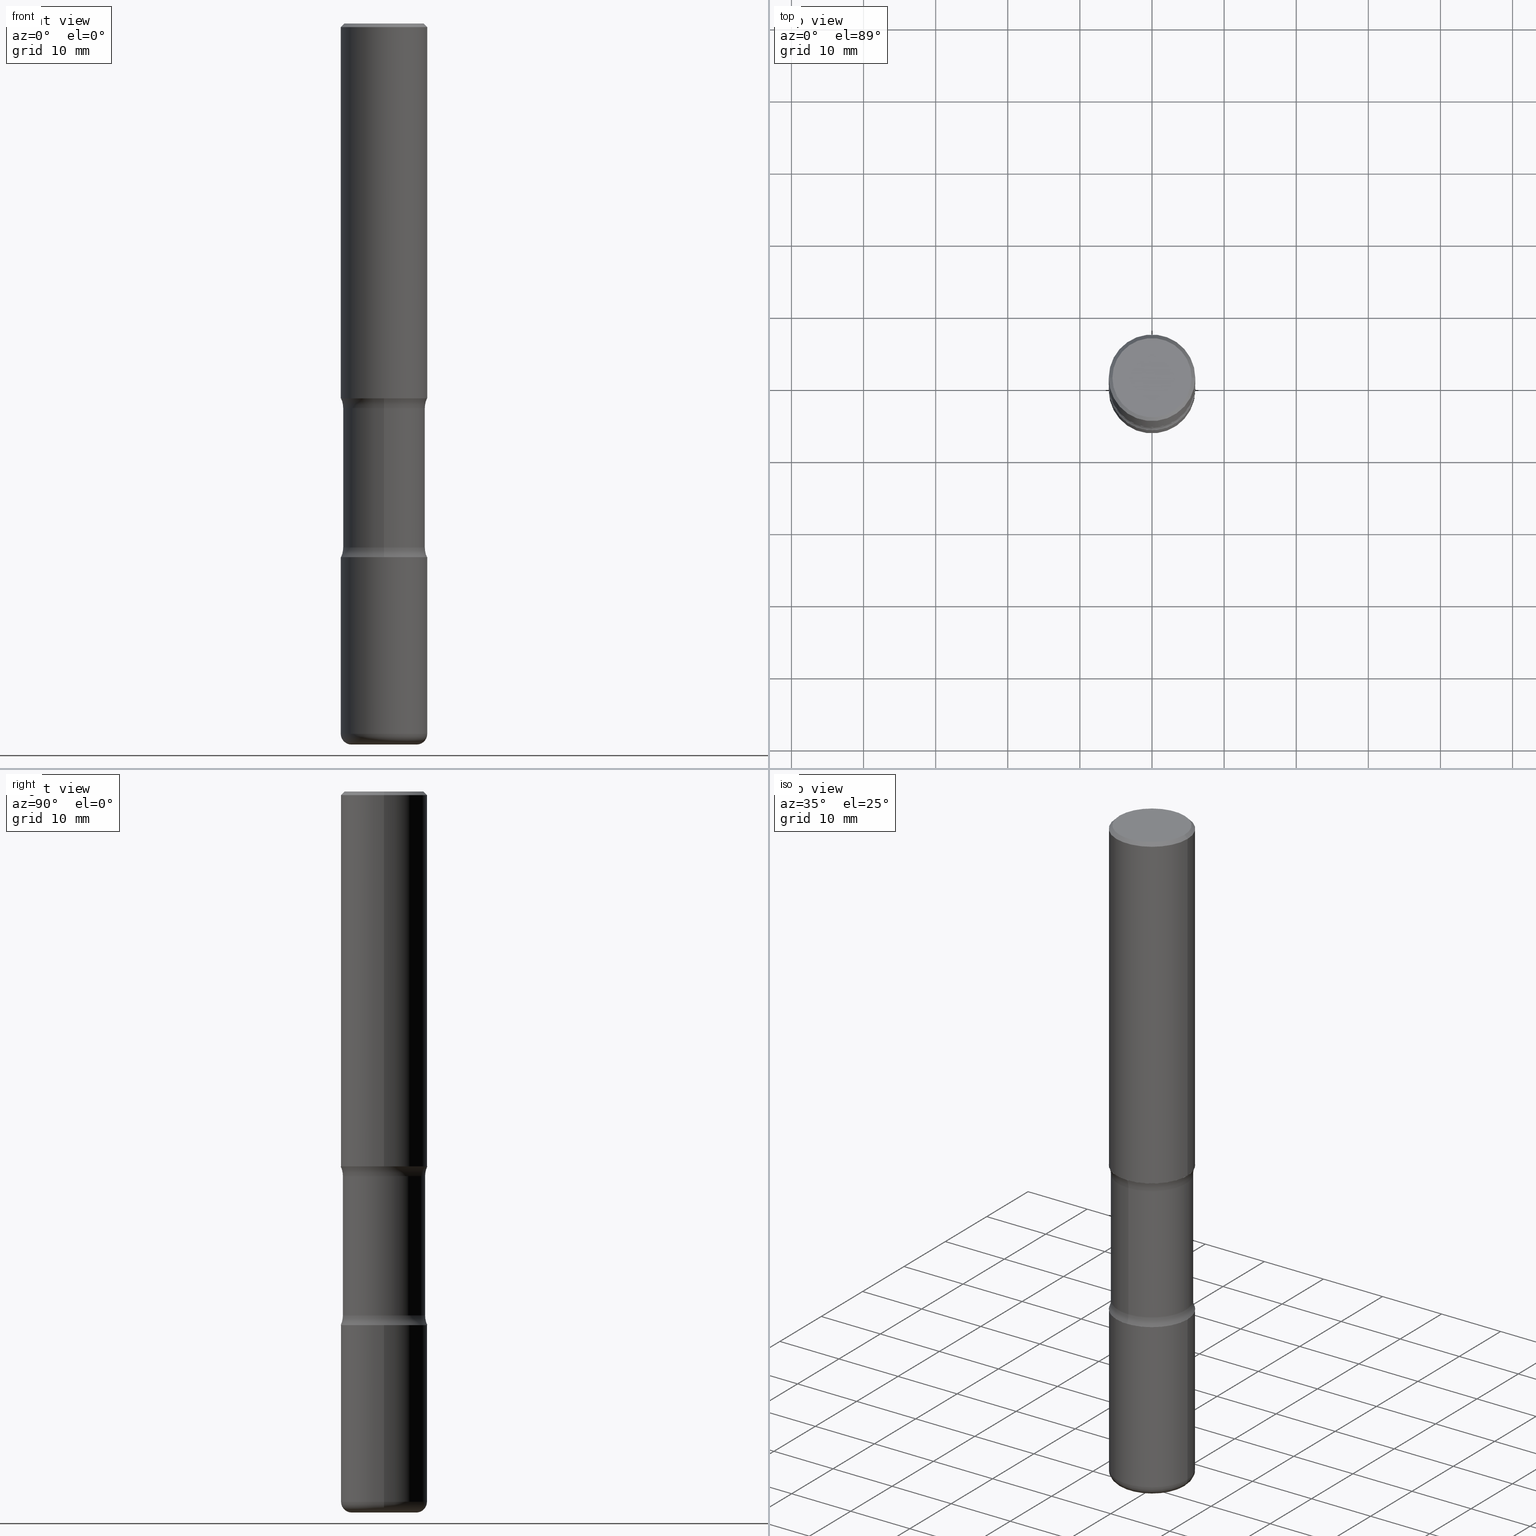
[diagram: canonical four-view strip — front | top / right | iso, engineering-drawing reading convention]
A machine part, canonical four-view strip (front | top / right | iso — engineering-drawing reading convention). The complete STEP part file that produces these views, byte-faithful:
ISO-10303-21;
HEADER;
FILE_DESCRIPTION (( 'STEP AP203' ),
    '1' );
FILE_NAME ('47701.STEP',
    '2024-03-02T07:27:56',
    ( '' ),
    ( '' ),
    'SwSTEP 2.0',
    'SolidWorks 2023',
    '' );
FILE_SCHEMA (( 'CONFIG_CONTROL_DESIGN' ));
ENDSEC;

DATA;
#1 = ORIENTED_EDGE ( 'NONE', *, *, #251, .F. ) ;
#2 = CARTESIAN_POINT ( 'NONE',  ( 7.124628819939777829E-29, -1.017208173258562247E-14, -2.913400000000000212 ) ) ;
#3 = CARTESIAN_POINT ( 'NONE',  ( 5.070539682259229331E-29, -7.426630284172150130E-15, -2.100216601173595432 ) ) ;
#4 = AXIS2_PLACEMENT_3D ( 'NONE', #394, #343, #308 ) ;
#5 = AXIS2_PLACEMENT_3D ( 'NONE', #281, #275, #165 ) ;
#6 = CARTESIAN_POINT ( 'NONE',  ( 9.483283483505337853E-29, -1.353961548389983144E-14, -3.877899999999999014 ) ) ;
#7 = CYLINDRICAL_SURFACE ( 'NONE', #88, 0.2361999999999999933 ) ;
#8 = EDGE_CURVE ( 'NONE', #21, #9, #61, .T. ) ;
#9 = VERTEX_POINT ( 'NONE', #107 ) ;
#10 = FACE_OUTER_BOUND ( 'NONE', #278, .T. ) ;
#11 = CIRCLE ( 'NONE', #232, 0.2362000000000001321 ) ;
#12 = DIRECTION ( 'NONE',  ( 2.525985086076564115E-29, -3.376177443336566513E-15, -1.000000000000000000 ) ) ;
#13 = ADVANCED_FACE ( 'NONE', ( #483 ), #99, .F. ) ;
#14 = ORIENTED_EDGE ( 'NONE', *, *, #8, .T. ) ;
#15 =( NAMED_UNIT ( * ) SI_UNIT ( $, .STERADIAN. ) SOLID_ANGLE_UNIT ( ) );
#16 = ADVANCED_BREP_SHAPE_REPRESENTATION ( '47701', ( #464, #480, #114, #405 ), #122 ) ;
#17 = ORIENTED_EDGE ( 'NONE', *, *, #32, .F. ) ;
#18 = DIRECTION ( 'NONE',  ( 2.525985086076564115E-29, -3.376177443336566513E-15, -1.000000000000000000 ) ) ;
#19 = DIRECTION ( 'NONE',  ( -2.445468806185136877E-29, 3.491481338843145188E-15, 1.000000000000000000 ) ) ;
#20 = TOROIDAL_SURFACE ( 'NONE', #453, 0.1771000000000002295, 0.05909999999999966669 ) ;
#21 = VERTEX_POINT ( 'NONE', #436 ) ;
#22 = CARTESIAN_POINT ( 'NONE',  ( 5.006363740022212241E-29, -7.147760596879688202E-15, -2.047200000000000131 ) ) ;
#23 = APPROVAL_PERSON_ORGANIZATION ( #247, #474, #423 ) ;
#24 = PLANE ( 'NONE',  #192 ) ;
#25 = EDGE_CURVE ( 'NONE', #315, #260, #106, .T. ) ;
#26 = CALENDAR_DATE ( 2024, 2, 3 ) ;
#27 = FACE_OUTER_BOUND ( 'NONE', #272, .T. ) ;
#28 = CIRCLE ( 'NONE', #177, 0.2243999999999999606 ) ;
#29 = DATE_TIME_ROLE ( 'creation_date' ) ;
#30 = EDGE_CURVE ( 'NONE', #282, #110, #284, .T. ) ;
#31 = DIRECTION ( 'NONE',  ( -2.445468806185136597E-29, 3.491481338843145583E-15, 1.000000000000000000 ) ) ;
#32 = EDGE_CURVE ( 'NONE', #323, #358, #488, .T. ) ;
#33 = PERSON_AND_ORGANIZATION ( #145, #179 ) ;
#34 = DIRECTION ( 'NONE',  ( 2.525985086076564115E-29, -3.376177443336566513E-15, -1.000000000000000000 ) ) ;
#35 = DIRECTION ( 'NONE',  ( -6.982962677686264344E-15, -1.000000000000000000, 0.000000000000000000 ) ) ;
#36 = SHAPE_DEFINITION_REPRESENTATION ( #46, #16 ) ;
#37 = AXIS2_PLACEMENT_3D ( 'NONE', #478, #141, #305 ) ;
#38 = APPLICATION_CONTEXT ( 'configuration controlled 3d designs of mechanical parts and assemblies' ) ;
#39 = CC_DESIGN_APPROVAL ( #288, ( #376 ) ) ;
#40 = EDGE_CURVE ( 'NONE', #238, #203, #289, .T. ) ;
#41 = DIRECTION ( 'NONE',  ( 1.000000000000000000, -6.982962677686267499E-15, 0.000000000000000000 ) ) ;
#42 = COORDINATED_UNIVERSAL_TIME_OFFSET ( 5, 0, .BEHIND. ) ;
#43 = DIRECTION ( 'NONE',  ( 6.860497997771529985E-15, 1.000000000000000000, 0.000000000000000000 ) ) ;
#44 = EDGE_LOOP ( 'NONE', ( #262, #14, #523, #67 ) ) ;
#45 = DIRECTION ( 'NONE',  ( -2.525985086076564115E-29, 3.376177443336566513E-15, 1.000000000000000000 ) ) ;
#46 = PRODUCT_DEFINITION_SHAPE ( 'NONE', 'NONE',  #376 ) ;
#47 = DIRECTION ( 'NONE',  ( 1.000000000000000000, -6.982962677686269077E-15, 0.000000000000000000 ) ) ;
#48 = VECTOR ( 'NONE', #255, 39.37007874015748143 ) ;
#49 = FACE_OUTER_BOUND ( 'NONE', #406, .T. ) ;
#50 = CIRCLE ( 'NONE', #82, 0.2362000000000001321 ) ;
#51 = DIRECTION ( 'NONE',  ( -2.445468806185136597E-29, 3.491481338843145583E-15, 1.000000000000000000 ) ) ;
#52 = EDGE_CURVE ( 'NONE', #323, #194, #327, .T. ) ;
#53 = DIRECTION ( 'NONE',  ( 2.438088387897960049E-29, -3.491481338843145188E-15, -1.000000000000000000 ) ) ;
#54 = ORIENTED_EDGE ( 'NONE', *, *, #551, .F. ) ;
#55 = CARTESIAN_POINT ( 'NONE',  ( 9.710227154047748282E-29, -1.362793696358492956E-14, -3.937000000000000277 ) ) ;
#56 = ORIENTED_EDGE ( 'NONE', *, *, #502, .F. ) ;
#57 = DIRECTION ( 'NONE',  ( 1.000000000000000000, -6.982962677686266711E-15, 4.876176775795936353E-29 ) ) ;
#58 = APPROVAL_PERSON_ORGANIZATION ( #33, #288, #459 ) ;
#59 = APPROVAL ( #328, 'UNSPECIFIED' ) ;
#60 = VECTOR ( 'NONE', #499, 39.37007874015748143 ) ;
#61 = LINE ( 'NONE', #444, #452 ) ;
#62 = AXIS2_PLACEMENT_3D ( 'NONE', #475, #121, #163 ) ;
#63 = CIRCLE ( 'NONE', #5, 0.05909999999999968751 ) ;
#64 = VERTEX_POINT ( 'NONE', #457 ) ;
#65 =( NAMED_UNIT ( * ) PLANE_ANGLE_UNIT ( ) SI_UNIT ( $, .RADIAN. ) );
#66 = DIRECTION ( 'NONE',  ( 2.438088387897960049E-29, -3.491481338843145188E-15, -1.000000000000000000 ) ) ;
#67 = ORIENTED_EDGE ( 'NONE', *, *, #150, .F. ) ;
#68 = CARTESIAN_POINT ( 'NONE',  ( 0.2362000000000001321, -8.797136381349186305E-15, -2.047200000000000131 ) ) ;
#69 = EDGE_LOOP ( 'NONE', ( #1, #242, #187, #500 ) ) ;
#70 = CARTESIAN_POINT ( 'NONE',  ( 5.006363740022212241E-29, -7.147760596879688202E-15, -2.047200000000000131 ) ) ;
#71 = EDGE_LOOP ( 'NONE', ( #234, #387, #196, #17 ) ) ;
#72 = VECTOR ( 'NONE', #439, 39.37007874015748143 ) ;
#73 = CIRCLE ( 'NONE', #293, 0.2362000000000002431 ) ;
#74 = ORIENTED_EDGE ( 'NONE', *, *, #368, .T. ) ;
#75 = DIRECTION ( 'NONE',  ( 2.525985086076564115E-29, -3.376177443336566513E-15, -1.000000000000000000 ) ) ;
#76 = EDGE_CURVE ( 'NONE', #110, #238, #462, .T. ) ;
#77 = FACE_OUTER_BOUND ( 'NONE', #44, .T. ) ;
#78 = APPROVAL_DATE_TIME ( #134, #59 ) ;
#79 = EDGE_CURVE ( 'NONE', #201, #9, #557, .T. ) ;
#80 = CLOSED_SHELL ( 'NONE', ( #447, #161, #355, #300, #237, #325 ) ) ;
#81 = CARTESIAN_POINT ( 'NONE',  ( 5.088323202950023588E-29, -7.401163270367792936E-15, -2.100216601173595432 ) ) ;
#82 = AXIS2_PLACEMENT_3D ( 'NONE', #22, #283, #446 ) ;
#83 = DIRECTION ( 'NONE',  ( -2.445468806185136877E-29, 3.491481338843145188E-15, 1.000000000000000000 ) ) ;
#84 = PERSON_AND_ORGANIZATION_ROLE ( 'design_supplier' ) ;
#85 = DIRECTION ( 'NONE',  ( 1.000000000000000000, -6.982962677686265922E-15, 4.876176775795935793E-29 ) ) ;
#86 = APPROVAL_STATUS ( 'not_yet_approved' ) ;
#87 = CARTESIAN_POINT ( 'NONE',  ( -0.2161999999999998368, 1.544631344304201183E-15, 4.268512490089730842E-18 ) ) ;
#88 = AXIS2_PLACEMENT_3D ( 'NONE', #190, #432, #57 ) ;
#89 = PRODUCT_DEFINITION_FORMATION_WITH_SPECIFIED_SOURCE ( 'ANY', '', #264, .NOT_KNOWN. ) ;
#90 = CARTESIAN_POINT ( 'NONE',  ( 7.124628819939777829E-29, -1.017208173258562247E-14, -2.913400000000000212 ) ) ;
#91 = ORIENTED_EDGE ( 'NONE', *, *, #79, .F. ) ;
#92 = CARTESIAN_POINT ( 'NONE',  ( 6.990709676060807691E-29, -9.993088279580958225E-15, -2.860383398826405354 ) ) ;
#93 = ADVANCED_FACE ( 'NONE', ( #49 ), #381, .T. ) ;
#94 = DIRECTION ( 'NONE',  ( -2.445468806185136597E-29, 3.491481338843145583E-15, 1.000000000000000000 ) ) ;
#95 = TOROIDAL_SURFACE ( 'NONE', #184, 0.1771000000000002295, 0.05909999999999966669 ) ;
#96 = AXIS2_PLACEMENT_3D ( 'NONE', #231, #182, #313 ) ;
#97 = ORIENTED_EDGE ( 'NONE', *, *, #270, .T. ) ;
#98 = DIRECTION ( 'NONE',  ( 1.000000000000000000, -6.982962677686266711E-15, 0.000000000000000000 ) ) ;
#99 = PLANE ( 'NONE',  #382 ) ;
#100 = ORIENTED_EDGE ( 'NONE', *, *, #512, .T. ) ;
#101 = DIRECTION ( 'NONE',  ( 2.525985086076564115E-29, -3.376177443336566513E-15, -1.000000000000000000 ) ) ;
#102 = EDGE_CURVE ( 'NONE', #323, #532, #222, .T. ) ;
#103 = CARTESIAN_POINT ( 'NONE',  ( 1.566976824872894642E-15, 0.2243999999999863049, -3.937000000000000721 ) ) ;
#104 = ORIENTED_EDGE ( 'NONE', *, *, #76, .T. ) ;
#105 = DIRECTION ( 'NONE',  ( 2.525985086076564115E-29, -3.376177443336566513E-15, -1.000000000000000000 ) ) ;
#106 = CIRCLE ( 'NONE', #545, 0.2362000000000001321 ) ;
#107 = CARTESIAN_POINT ( 'NONE',  ( -0.2361999999999998823, 1.579546157692632438E-15, -0.02000000000000006981 ) ) ;
#108 = CIRCLE ( 'NONE', #129, 0.2362000000000002153 ) ;
#109 = CC_DESIGN_APPROVAL ( #474, ( #422 ) ) ;
#110 = VERTEX_POINT ( 'NONE', #515 ) ;
#111 = CARTESIAN_POINT ( 'NONE',  ( 4.936620538380257512E-29, -7.247636831167487464E-15, -2.047200000000000131 ) ) ;
#112 = ORIENTED_EDGE ( 'NONE', *, *, #32, .T. ) ;
#113 = DIRECTION ( 'NONE',  ( -2.445468806185136597E-29, 3.491481338843145583E-15, 1.000000000000000000 ) ) ;
#114 = MANIFOLD_SOLID_BREP ( 'Body-Move/Copy2[4]', #118 ) ;
#115 = EDGE_CURVE ( 'NONE', #540, #9, #332, .T. ) ;
#116 = ORIENTED_EDGE ( 'NONE', *, *, #558, .T. ) ;
#117 = CARTESIAN_POINT ( 'NONE',  ( -1.620449627073587747E-15, -0.2362000000000074318, -2.047199999999999243 ) ) ;
#118 = CLOSED_SHELL ( 'NONE', ( #386, #494, #419, #259, #536, #403, #199, #211 ) ) ;
#119 = CIRCLE ( 'NONE', #131, 0.2362000000000001321 ) ;
#120 = EDGE_LOOP ( 'NONE', ( #326, #97 ) ) ;
#121 = DIRECTION ( 'NONE',  ( -2.445468806185136597E-29, 3.491481338843145583E-15, 1.000000000000000000 ) ) ;
#122 =( GEOMETRIC_REPRESENTATION_CONTEXT ( 3 ) GLOBAL_UNCERTAINTY_ASSIGNED_CONTEXT ( ( #174 ) ) GLOBAL_UNIT_ASSIGNED_CONTEXT ( ( #322, #65, #15 ) ) REPRESENTATION_CONTEXT ( 'NONE', 'WORKASPACE' ) );
#123 = APPLICATION_PROTOCOL_DEFINITION ( 'international standard', 'config_control_design', 1994, #38 ) ;
#124 = CC_DESIGN_DATE_AND_TIME_ASSIGNMENT ( #369, #253, ( #422 ) ) ;
#125 = APPROVAL_ROLE ( '' ) ;
#126 = CARTESIAN_POINT ( 'NONE',  ( 1.649375784469546815E-15, 0.2361999999999930266, -2.047200000000001019 ) ) ;
#127 = AXIS2_PLACEMENT_3D ( 'NONE', #433, #53, #345 ) ;
#128 = PERSON_AND_ORGANIZATION_ROLE ( 'creator' ) ;
#129 = AXIS2_PLACEMENT_3D ( 'NONE', #198, #501, #455 ) ;
#130 = DIRECTION ( 'NONE',  ( 1.000000000000000000, -6.982962677686266711E-15, 4.876217060660159599E-29 ) ) ;
#131 = AXIS2_PLACEMENT_3D ( 'NONE', #2, #438, #47 ) ;
#132 = FACE_OUTER_BOUND ( 'NONE', #312, .T. ) ;
#133 = CARTESIAN_POINT ( 'NONE',  ( 4.890937612370289799E-31, -6.982962677686315028E-17, -0.02000000000000006981 ) ) ;
#134 = DATE_AND_TIME ( #26, #395 ) ;
#135 = ADVANCED_FACE ( 'NONE', ( #244 ), #95, .T. ) ;
#136 = DIRECTION ( 'NONE',  ( 6.982962677686265922E-15, 1.000000000000000000, -3.376177443336566513E-15 ) ) ;
#137 = ORIENTED_EDGE ( 'NONE', *, *, #228, .F. ) ;
#138 = DIRECTION ( 'NONE',  ( 2.525985086076564115E-29, -3.376177443336566513E-15, -1.000000000000000000 ) ) ;
#139 = AXIS2_PLACEMENT_3D ( 'NONE', #399, #113, #240 ) ;
#140 = ORIENTED_EDGE ( 'NONE', *, *, #502, .T. ) ;
#141 = DIRECTION ( 'NONE',  ( 2.438088387897960049E-29, -3.491481338843145188E-15, -1.000000000000000000 ) ) ;
#142 = EDGE_CURVE ( 'NONE', #9, #540, #241, .T. ) ;
#143 = DIRECTION ( 'NONE',  ( 2.525985086076564115E-29, -3.376177443336566513E-15, -1.000000000000000000 ) ) ;
#144 = DIRECTION ( 'NONE',  ( -2.445468806185136597E-29, 3.491481338843145583E-15, 1.000000000000000000 ) ) ;
#145 = PERSON ( 'UNSPECIFIED', 'UNSPECIFIED', 'UNSPECIFIED', ('UNSPECIFIED'), ('UNSPECIFIED'), ('UNSPECIFIED') ) ;
#146 = ORIENTED_EDGE ( 'NONE', *, *, #270, .F. ) ;
#147 = DIRECTION ( 'NONE',  ( 2.525985086076564115E-29, -3.376177443336566513E-15, -1.000000000000000000 ) ) ;
#148 = AXIS2_PLACEMENT_3D ( 'NONE', #339, #550, #514 ) ;
#149 = DIRECTION ( 'NONE',  ( -2.445468806185136597E-29, 3.491481338843145583E-15, 1.000000000000000000 ) ) ;
#150 = EDGE_CURVE ( 'NONE', #505, #540, #487, .T. ) ;
#151 = EDGE_LOOP ( 'NONE', ( #146, #534, #197, #91 ) ) ;
#152 = CARTESIAN_POINT ( 'NONE',  ( -1.539495750699834052E-15, -0.2244000000000135608, -3.936999999999999389 ) ) ;
#153 = DIRECTION ( 'NONE',  ( -2.445468806185136597E-29, 3.491481338843145583E-15, 1.000000000000000000 ) ) ;
#154 = VERTEX_POINT ( 'NONE', #295 ) ;
#155 = DIRECTION ( 'NONE',  ( 6.982962677686265922E-15, 1.000000000000000000, -2.434802133390609421E-15 ) ) ;
#156 = EDGE_LOOP ( 'NONE', ( #159, #189 ) ) ;
#157 = DIRECTION ( 'NONE',  ( 1.000000000000000000, -6.982962677686269077E-15, 0.000000000000000000 ) ) ;
#158 = AXIS2_PLACEMENT_3D ( 'NONE', #425, #144, #98 ) ;
#159 = ORIENTED_EDGE ( 'NONE', *, *, #292, .T. ) ;
#160 =( LENGTH_UNIT ( ) NAMED_UNIT ( * ) SI_UNIT ( $, .METRE. ) );
#161 = ADVANCED_FACE ( 'NONE', ( #372 ), #525, .T. ) ;
#162 = ORIENTED_EDGE ( 'NONE', *, *, #330, .T. ) ;
#163 = DIRECTION ( 'NONE',  ( 1.000000000000000000, -6.982962677686266711E-15, 4.876217060660159599E-29 ) ) ;
#164 = ORIENTED_EDGE ( 'NONE', *, *, #142, .F. ) ;
#165 = DIRECTION ( 'NONE',  ( -1.000000000000000000, 7.105427357600997914E-15, 0.000000000000000000 ) ) ;
#166 = LOCAL_TIME ( 2, 27, 56.00000000000000000, #250 ) ;
#167 = AXIS2_PLACEMENT_3D ( 'NONE', #81, #418, #331 ) ;
#168 = EDGE_CURVE ( 'NONE', #384, #203, #420, .T. ) ;
#169 = ORIENTED_EDGE ( 'NONE', *, *, #466, .T. ) ;
#170 = CALENDAR_DATE ( 2024, 2, 3 ) ;
#171 = CARTESIAN_POINT ( 'NONE',  ( 6.994978375559792251E-29, -9.986975258939122984E-15, -2.860383398826405354 ) ) ;
#172 = DIRECTION ( 'NONE',  ( -6.982962677686266711E-15, -1.000000000000000000, 3.491481338843145583E-15 ) ) ;
#173 = PERSON_AND_ORGANIZATION ( #145, #179 ) ;
#174 = UNCERTAINTY_MEASURE_WITH_UNIT (LENGTH_MEASURE( 1.000000000000000082E-05 ), #322, 'distance_accuracy_value', 'NONE');
#175 = CARTESIAN_POINT ( 'NONE',  ( 9.710227154047748282E-29, -1.362793696358492956E-14, -3.937000000000000277 ) ) ;
#176 = PERSON_AND_ORGANIZATION_ROLE ( 'classification_officer' ) ;
#177 = AXIS2_PLACEMENT_3D ( 'NONE', #269, #12, #186 ) ;
#178 = CYLINDRICAL_SURFACE ( 'NONE', #148, 0.2362000000000001598 ) ;
#179 = ORGANIZATION ( 'UNSPECIFIED', 'UNSPECIFIED', '' ) ;
#180 = EDGE_CURVE ( 'NONE', #472, #194, #191, .T. ) ;
#181 = ORIENTED_EDGE ( 'NONE', *, *, #349, .T. ) ;
#182 = DIRECTION ( 'NONE',  ( 2.445468806185136597E-29, -3.491481338843145583E-15, -1.000000000000000000 ) ) ;
#183 = CC_DESIGN_DATE_AND_TIME_ASSIGNMENT ( #552, #29, ( #376 ) ) ;
#184 = AXIS2_PLACEMENT_3D ( 'NONE', #460, #149, #530 ) ;
#185 = CIRCLE ( 'NONE', #341, 0.2362000000000001321 ) ;
#186 = DIRECTION ( 'NONE',  ( 6.982962677686265922E-15, 1.000000000000000000, -2.434802133390609421E-15 ) ) ;
#187 = ORIENTED_EDGE ( 'NONE', *, *, #79, .T. ) ;
#188 = DIRECTION ( 'NONE',  ( 1.000000000000000000, -6.982962677686266711E-15, 0.000000000000000000 ) ) ;
#189 = ORIENTED_EDGE ( 'NONE', *, *, #168, .T. ) ;
#190 = CARTESIAN_POINT ( 'NONE',  ( 0.000000000000000000, 0.000000000000000000, 0.000000000000000000 ) ) ;
#191 = CIRCLE ( 'NONE', #214, 0.2362000000000002431 ) ;
#192 = AXIS2_PLACEMENT_3D ( 'NONE', #70, #364, #541 ) ;
#193 = DIRECTION ( 'NONE',  ( 1.000000000000000000, -6.982962677686266711E-15, 0.000000000000000000 ) ) ;
#194 = VERTEX_POINT ( 'NONE', #126 ) ;
#195 = DIRECTION ( 'NONE',  ( 2.525985086076564115E-29, -3.376177443336566513E-15, -1.000000000000000000 ) ) ;
#196 = ORIENTED_EDGE ( 'NONE', *, *, #368, .F. ) ;
#197 = ORIENTED_EDGE ( 'NONE', *, *, #115, .T. ) ;
#198 = CARTESIAN_POINT ( 'NONE',  ( 9.483283483505337853E-29, -1.353961548389983144E-14, -3.877899999999999014 ) ) ;
#199 = ADVANCED_FACE ( 'NONE', ( #370 ), #442, .F. ) ;
#200 = CIRCLE ( 'NONE', #504, 0.2362000000000002153 ) ;
#201 = VERTEX_POINT ( 'NONE', #87 ) ;
#202 = FACE_OUTER_BOUND ( 'NONE', #356, .T. ) ;
#203 = VERTEX_POINT ( 'NONE', #417 ) ;
#204 = CARTESIAN_POINT ( 'NONE',  ( 4.890937612370289799E-31, -6.982962677686315028E-17, -0.02000000000000006981 ) ) ;
#205 = ADVANCED_FACE ( 'NONE', ( #378 ), #178, .T. ) ;
#206 = DIRECTION ( 'NONE',  ( -6.982962677686266711E-15, -1.000000000000000000, 0.000000000000000000 ) ) ;
#207 = CIRCLE ( 'NONE', #62, 0.2161999999999998368 ) ;
#208 = SECURITY_CLASSIFICATION_LEVEL ( 'unclassified' ) ;
#209 = DIRECTION ( 'NONE',  ( -2.445468806185136597E-29, 3.491481338843145583E-15, 1.000000000000000000 ) ) ;
#210 = APPROVAL_DATE_TIME ( #213, #288 ) ;
#211 = ADVANCED_FACE ( 'NONE', ( #215 ), #556, .T. ) ;
#212 = AXIS2_PLACEMENT_3D ( 'NONE', #217, #209, #470 ) ;
#213 = DATE_AND_TIME ( #374, #166 ) ;
#214 = AXIS2_PLACEMENT_3D ( 'NONE', #467, #510, #258 ) ;
#215 = FACE_OUTER_BOUND ( 'NONE', #491, .T. ) ;
#216 = CALENDAR_DATE ( 2024, 2, 3 ) ;
#217 = CARTESIAN_POINT ( 'NONE',  ( 7.124628819939777829E-29, -1.017208173258562247E-14, -2.913400000000000212 ) ) ;
#218 = CC_DESIGN_PERSON_AND_ORGANIZATION_ASSIGNMENT ( #294, #176, ( #422 ) ) ;
#219 = ORIENTED_EDGE ( 'NONE', *, *, #76, .F. ) ;
#220 = DIRECTION ( 'NONE',  ( -6.982962677686265922E-15, -1.000000000000000000, 3.376177443336566513E-15 ) ) ;
#221 = CARTESIAN_POINT ( 'NONE',  ( -0.2362000000000001598, 1.678301941865357775E-15, -1.161852468318209598E-29 ) ) ;
#222 = CIRCLE ( 'NONE', #413, 0.2243999999999999606 ) ;
#223 = CONICAL_SURFACE ( 'NONE', #96, 0.2361999999999998823, 0.7853981633974479459 ) ;
#224 = EDGE_LOOP ( 'NONE', ( #137, #54, #268, #74 ) ) ;
#225 = PLANE ( 'NONE',  #37 ) ;
#226 = ORIENTED_EDGE ( 'NONE', *, *, #330, .F. ) ;
#227 = CARTESIAN_POINT ( 'NONE',  ( 0.2161999999999998368, -1.586759460484351002E-15, 4.268512490111238857E-18 ) ) ;
#228 = EDGE_CURVE ( 'NONE', #315, #64, #463, .T. ) ;
#229 = DIRECTION ( 'NONE',  ( -1.000000000000000000, 6.982962677686265922E-15, -4.876176775795935793E-29 ) ) ;
#230 = EDGE_LOOP ( 'NONE', ( #274, #448 ) ) ;
#231 = CARTESIAN_POINT ( 'NONE',  ( 4.890937612370289799E-31, -6.982962677686315028E-17, -0.02000000000000006981 ) ) ;
#232 = AXIS2_PLACEMENT_3D ( 'NONE', #361, #246, #409 ) ;
#233 = CARTESIAN_POINT ( 'NONE',  ( 7.124628819939777829E-29, -1.017208173258562247E-14, -2.913400000000000212 ) ) ;
#234 = ORIENTED_EDGE ( 'NONE', *, *, #102, .T. ) ;
#235 = CARTESIAN_POINT ( 'NONE',  ( 5.070539682259229331E-29, -7.426630284172150130E-15, -2.100216601173595432 ) ) ;
#236 = DIRECTION ( 'NONE',  ( 2.525985086076564115E-29, -3.376177443336566513E-15, -1.000000000000000000 ) ) ;
#237 = ADVANCED_FACE ( 'NONE', ( #132 ), #297, .F. ) ;
#238 = VERTEX_POINT ( 'NONE', #375 ) ;
#239 = ORIENTED_EDGE ( 'NONE', *, *, #391, .T. ) ;
#240 = DIRECTION ( 'NONE',  ( 1.000000000000000000, -6.982962677686266711E-15, 4.876176775795936353E-29 ) ) ;
#241 = CIRCLE ( 'NONE', #553, 0.2361999999999998823 ) ;
#242 = ORIENTED_EDGE ( 'NONE', *, *, #426, .F. ) ;
#243 = DIRECTION ( 'NONE',  ( -1.000000000000000000, 6.982962677686265922E-15, -4.883557194083112340E-29 ) ) ;
#244 = FACE_OUTER_BOUND ( 'NONE', #528, .T. ) ;
#245 = ADVANCED_FACE ( 'NONE', ( #254 ), #20, .T. ) ;
#246 = DIRECTION ( 'NONE',  ( 2.525985086076564115E-29, -3.376177443336566513E-15, -1.000000000000000000 ) ) ;
#247 = PERSON_AND_ORGANIZATION ( #145, #179 ) ;
#248 = DIRECTION ( 'NONE',  ( -2.445468806185136597E-29, 3.491481338843145583E-15, 1.000000000000000000 ) ) ;
#249 = DIRECTION ( 'NONE',  ( -1.000000000000000000, 6.982962677686267499E-15, 0.000000000000000000 ) ) ;
#250 = COORDINATED_UNIVERSAL_TIME_OFFSET ( 5, 0, .BEHIND. ) ;
#251 = EDGE_CURVE ( 'NONE', #342, #540, #473, .T. ) ;
#252 = CARTESIAN_POINT ( 'NONE',  ( 2.439847159583631044E-15, 0.3493999999999924388, -2.100216601173596320 ) ) ;
#253 = DATE_TIME_ROLE ( 'classification_date' ) ;
#254 = FACE_OUTER_BOUND ( 'NONE', #495, .T. ) ;
#255 = DIRECTION ( 'NONE',  ( -0.7071067811865472397, 2.468850131082253905E-15, -0.7071067811865477948 ) ) ;
#256 = PERSON_AND_ORGANIZATION ( #145, #179 ) ;
#257 = AXIS2_PLACEMENT_3D ( 'NONE', #482, #94, #261 ) ;
#258 = DIRECTION ( 'NONE',  ( 6.982962677686265922E-15, 1.000000000000000000, -3.469747663417773452E-15 ) ) ;
#259 = ADVANCED_FACE ( 'NONE', ( #27 ), #333, .F. ) ;
#260 = VERTEX_POINT ( 'NONE', #461 ) ;
#261 = DIRECTION ( 'NONE',  ( 1.000000000000000000, -6.982962677686266711E-15, 4.876176775795936353E-29 ) ) ;
#262 = ORIENTED_EDGE ( 'NONE', *, *, #456, .T. ) ;
#263 = CARTESIAN_POINT ( 'NONE',  ( 5.088323202950023588E-29, -7.401163270367792936E-15, -2.100216601173595432 ) ) ;
#264 = PRODUCT ( '47701', '47701', '', ( #337 ) ) ;
#265 = CARTESIAN_POINT ( 'NONE',  ( 1.566976824872848494E-15, 0.2243999999999925499, -2.100216601173596320 ) ) ;
#266 = AXIS2_PLACEMENT_3D ( 'NONE', #235, #75, #490 ) ;
#267 = CC_DESIGN_APPROVAL ( #59, ( #89 ) ) ;
#268 = ORIENTED_EDGE ( 'NONE', *, *, #526, .T. ) ;
#269 = CARTESIAN_POINT ( 'NONE',  ( 6.990709676060807691E-29, -9.993088279580958225E-15, -2.860383398826405354 ) ) ;
#270 = EDGE_CURVE ( 'NONE', #342, #201, #404, .T. ) ;
#271 = CARTESIAN_POINT ( 'NONE',  ( 7.124628819939777829E-29, -1.017208173258562247E-14, -2.913400000000000212 ) ) ;
#272 = EDGE_LOOP ( 'NONE', ( #477, #454, #389, #169 ) ) ;
#273 = CARTESIAN_POINT ( 'NONE',  ( -1.620449627073565067E-15, -0.2362000000000102629, -2.913399999999999768 ) ) ;
#274 = ORIENTED_EDGE ( 'NONE', *, *, #466, .F. ) ;
#275 = DIRECTION ( 'NONE',  ( 7.105427357601001859E-15, 1.000000000000000000, -3.491481338843145583E-15 ) ) ;
#276 = VECTOR ( 'NONE', #385, 39.37007874015748143 ) ;
#277 = EDGE_CURVE ( 'NONE', #110, #282, #429, .T. ) ;
#278 = EDGE_LOOP ( 'NONE', ( #400, #350, #360, #164 ) ) ;
#279 = ORIENTED_EDGE ( 'NONE', *, *, #228, .T. ) ;
#280 = ORIENTED_EDGE ( 'NONE', *, *, #277, .T. ) ;
#281 = CARTESIAN_POINT ( 'NONE',  ( -0.1771000000000002295, -1.228124429886869218E-14, -3.877899999999999014 ) ) ;
#282 = VERTEX_POINT ( 'NONE', #348 ) ;
#283 = DIRECTION ( 'NONE',  ( -2.445468806185136597E-29, 3.491481338843145583E-15, 1.000000000000000000 ) ) ;
#284 = CIRCLE ( 'NONE', #301, 0.1771000000000002295 ) ;
#285 = AXIS2_PLACEMENT_3D ( 'NONE', #449, #243, #206 ) ;
#286 = ORIENTED_EDGE ( 'NONE', *, *, #30, .F. ) ;
#287 = DIRECTION ( 'NONE',  ( -2.445468806185136597E-29, 3.491481338843145583E-15, 1.000000000000000000 ) ) ;
#288 = APPROVAL ( #555, 'UNSPECIFIED' ) ;
#289 = LINE ( 'NONE', #296, #60 ) ;
#290 = PERSON_AND_ORGANIZATION_ROLE ( 'creator' ) ;
#291 = DIRECTION ( 'NONE',  ( 2.445468806185136597E-29, -3.491481338843145583E-15, -1.000000000000000000 ) ) ;
#292 = EDGE_CURVE ( 'NONE', #203, #384, #119, .T. ) ;
#293 = AXIS2_PLACEMENT_3D ( 'NONE', #111, #18, #498 ) ;
#294 = PERSON_AND_ORGANIZATION ( #145, #179 ) ;
#295 = CARTESIAN_POINT ( 'NONE',  ( -0.2362000000000000766, -1.186131354203447347E-14, -3.877899999999999014 ) ) ;
#296 = CARTESIAN_POINT ( 'NONE',  ( 0.2362000000000001598, -1.649375784469497314E-15, 1.151752954443000929E-29 ) ) ;
#297 = PLANE ( 'NONE',  #520 ) ;
#298 = PERSON_AND_ORGANIZATION ( #145, #179 ) ;
#299 = CARTESIAN_POINT ( 'NONE',  ( 4.890937612370289799E-31, -6.982962677686315028E-17, -0.02000000000000006981 ) ) ;
#300 = ADVANCED_FACE ( 'NONE', ( #351 ), #225, .F. ) ;
#301 = AXIS2_PLACEMENT_3D ( 'NONE', #531, #392, #193 ) ;
#302 = AXIS2_PLACEMENT_3D ( 'NONE', #171, #34, #136 ) ;
#303 = DIRECTION ( 'NONE',  ( 1.000000000000000000, -6.982962677686266711E-15, 4.883557194083113462E-29 ) ) ;
#304 = CARTESIAN_POINT ( 'NONE',  ( -0.2361999999999998823, 1.579546157692632438E-15, -0.02000000000000006981 ) ) ;
#305 = DIRECTION ( 'NONE',  ( -1.000000000000000000, 6.982962677686265922E-15, -4.876176775795935793E-29 ) ) ;
#306 = EDGE_CURVE ( 'NONE', #154, #384, #388, .T. ) ;
#307 = VECTOR ( 'NONE', #83, 39.37007874015748143 ) ;
#308 = DIRECTION ( 'NONE',  ( 6.860497997771531562E-15, 1.000000000000000000, 0.000000000000000000 ) ) ;
#309 = TOROIDAL_SURFACE ( 'NONE', #539, 0.3493999999999998218, 0.1249999999999999029 ) ;
#310 = LOCAL_TIME ( 2, 27, 56.00000000000000000, #516 ) ;
#311 = ORIENTED_EDGE ( 'NONE', *, *, #526, .F. ) ;
#312 = EDGE_LOOP ( 'NONE', ( #544, #366 ) ) ;
#313 = DIRECTION ( 'NONE',  ( -1.000000000000000000, 6.982962677686267499E-15, 0.000000000000000000 ) ) ;
#314 = DIRECTION ( 'NONE',  ( 1.000000000000000000, -6.982962677686267499E-15, 0.000000000000000000 ) ) ;
#315 = VERTEX_POINT ( 'NONE', #273 ) ;
#316 = FACE_OUTER_BOUND ( 'NONE', #450, .T. ) ;
#317 = ADVANCED_FACE ( 'NONE', ( #390 ), #357, .T. ) ;
#318 = ORIENTED_EDGE ( 'NONE', *, *, #52, .F. ) ;
#319 = VECTOR ( 'NONE', #147, 39.37007874015748143 ) ;
#320 = CC_DESIGN_SECURITY_CLASSIFICATION ( #422, ( #89 ) ) ;
#321 = ORIENTED_EDGE ( 'NONE', *, *, #551, .T. ) ;
#322 =( CONVERSION_BASED_UNIT ( 'INCH', #441 ) LENGTH_UNIT ( ) NAMED_UNIT ( #542 ) );
#323 = VERTEX_POINT ( 'NONE', #265 ) ;
#324 = DIRECTION ( 'NONE',  ( 6.982962677686265922E-15, 1.000000000000000000, -3.376177443336566513E-15 ) ) ;
#325 = ADVANCED_FACE ( 'NONE', ( #10 ), #7, .T. ) ;
#326 = ORIENTED_EDGE ( 'NONE', *, *, #426, .T. ) ;
#327 = CIRCLE ( 'NONE', #503, 0.1249999999999999029 ) ;
#328 = APPROVAL_STATUS ( 'not_yet_approved' ) ;
#329 = CARTESIAN_POINT ( 'NONE',  ( 0.2361999999999998823, -1.690279253850498179E-15, -0.02000000000000006981 ) ) ;
#330 = EDGE_CURVE ( 'NONE', #154, #238, #200, .T. ) ;
#331 = DIRECTION ( 'NONE',  ( 6.982962677686265922E-15, 1.000000000000000000, -3.376177443336566513E-15 ) ) ;
#332 = CIRCLE ( 'NONE', #440, 0.2361999999999998823 ) ;
#333 = TOROIDAL_SURFACE ( 'NONE', #167, 0.3493999999999998218, 0.1249999999999999029 ) ;
#334 = ORIENTED_EDGE ( 'NONE', *, *, #30, .T. ) ;
#335 = PERSON_AND_ORGANIZATION ( #145, #179 ) ;
#336 = CC_DESIGN_PERSON_AND_ORGANIZATION_ASSIGNMENT ( #173, #290, ( #89 ) ) ;
#337 = MECHANICAL_CONTEXT ( 'NONE', #38, 'mechanical' ) ;
#338 = DIRECTION ( 'NONE',  ( 6.982962677686265922E-15, 1.000000000000000000, -2.434802133390609815E-15 ) ) ;
#339 = CARTESIAN_POINT ( 'NONE',  ( 0.000000000000000000, 0.000000000000000000, 0.000000000000000000 ) ) ;
#340 = AXIS2_PLACEMENT_3D ( 'NONE', #549, #172, #508 ) ;
#341 = AXIS2_PLACEMENT_3D ( 'NONE', #496, #287, #157 ) ;
#342 = VERTEX_POINT ( 'NONE', #227 ) ;
#343 = DIRECTION ( 'NONE',  ( 1.000000000000000000, -6.860497997771530774E-15, 4.842210945089756248E-29 ) ) ;
#344 = LOCAL_TIME ( 2, 27, 56.00000000000000000, #411 ) ;
#345 = DIRECTION ( 'NONE',  ( -1.000000000000000000, 6.982962677686265922E-15, -4.876176775795935793E-29 ) ) ;
#346 = DESIGN_CONTEXT ( 'detailed design', #430, 'design' ) ;
#347 = ORIENTED_EDGE ( 'NONE', *, *, #306, .F. ) ;
#348 = CARTESIAN_POINT ( 'NONE',  ( -0.1771000000000002295, -1.217445219401439645E-14, -3.936999999999998501 ) ) ;
#349 = EDGE_CURVE ( 'NONE', #532, #472, #546, .T. ) ;
#350 = ORIENTED_EDGE ( 'NONE', *, *, #486, .T. ) ;
#351 = FACE_OUTER_BOUND ( 'NONE', #120, .T. ) ;
#352 = AXIS2_PLACEMENT_3D ( 'NONE', #299, #291, #249 ) ;
#353 = CARTESIAN_POINT ( 'NONE',  ( -0.2362000000000001321, -1.017754666637736977E-14, -2.913400000000000212 ) ) ;
#354 = CIRCLE ( 'NONE', #266, 0.2243999999999999606 ) ;
#355 = ADVANCED_FACE ( 'NONE', ( #524 ), #223, .T. ) ;
#356 = EDGE_LOOP ( 'NONE', ( #437, #279, #239, #311 ) ) ;
#357 = CYLINDRICAL_SURFACE ( 'NONE', #257, 0.2362000000000001598 ) ;
#358 = VERTEX_POINT ( 'NONE', #485 ) ;
#359 = ORIENTED_EDGE ( 'NONE', *, *, #292, .F. ) ;
#360 = ORIENTED_EDGE ( 'NONE', *, *, #150, .T. ) ;
#361 = CARTESIAN_POINT ( 'NONE',  ( 7.124628819939777829E-29, -1.017208173258562247E-14, -2.913400000000000212 ) ) ;
#362 = TOROIDAL_SURFACE ( 'NONE', #431, 0.3493999999999999884, 0.1250000000000000000 ) ;
#363 = EDGE_LOOP ( 'NONE', ( #347, #162, #398, #489 ) ) ;
#364 = DIRECTION ( 'NONE',  ( 2.525985086076564115E-29, -3.376177443336566513E-15, -1.000000000000000000 ) ) ;
#365 = EDGE_CURVE ( 'NONE', #532, #64, #533, .T. ) ;
#366 = ORIENTED_EDGE ( 'NONE', *, *, #486, .F. ) ;
#367 = CYLINDRICAL_SURFACE ( 'NONE', #139, 0.2361999999999999933 ) ;
#368 = EDGE_CURVE ( 'NONE', #358, #64, #28, .T. ) ;
#369 = DATE_AND_TIME ( #513, #443 ) ;
#370 = FACE_OUTER_BOUND ( 'NONE', #224, .T. ) ;
#371 = PERSON_AND_ORGANIZATION ( #145, #179 ) ;
#372 = FACE_OUTER_BOUND ( 'NONE', #151, .T. ) ;
#373 = CIRCLE ( 'NONE', #285, 0.1250000000000000000 ) ;
#374 = CALENDAR_DATE ( 2024, 2, 3 ) ;
#375 = CARTESIAN_POINT ( 'NONE',  ( 0.2362000000000000766, -1.518899126836932954E-14, -3.877899999999999014 ) ) ;
#376 = PRODUCT_DEFINITION ( 'UNKNOWN', '', #89, #346 ) ;
#377 = DATE_AND_TIME ( #216, #344 ) ;
#378 = FACE_OUTER_BOUND ( 'NONE', #363, .T. ) ;
#379 = ORIENTED_EDGE ( 'NONE', *, *, #306, .T. ) ;
#380 = PLANE ( 'NONE',  #527 ) ;
#381 = PLANE ( 'NONE',  #127 ) ;
#382 = AXIS2_PLACEMENT_3D ( 'NONE', #271, #66, #229 ) ;
#383 = VECTOR ( 'NONE', #412, 39.37007874015748143 ) ;
#384 = VERTEX_POINT ( 'NONE', #353 ) ;
#385 = DIRECTION ( 'NONE',  ( -2.445468806185136877E-29, 3.491481338843145188E-15, 1.000000000000000000 ) ) ;
#386 = ADVANCED_FACE ( 'NONE', ( #434 ), #529, .T. ) ;
#387 = ORIENTED_EDGE ( 'NONE', *, *, #365, .T. ) ;
#388 = LINE ( 'NONE', #221, #276 ) ;
#389 = ORIENTED_EDGE ( 'NONE', *, *, #52, .T. ) ;
#390 = FACE_OUTER_BOUND ( 'NONE', #396, .T. ) ;
#391 = EDGE_CURVE ( 'NONE', #64, #358, #421, .T. ) ;
#392 = DIRECTION ( 'NONE',  ( -2.445468806185136597E-29, 3.491481338843145583E-15, 1.000000000000000000 ) ) ;
#393 = EDGE_LOOP ( 'NONE', ( #497, #181, #492, #318 ) ) ;
#394 = CARTESIAN_POINT ( 'NONE',  ( -2.397058000421320660E-15, -0.3494000000000072048, -2.100216601173594544 ) ) ;
#395 = LOCAL_TIME ( 2, 27, 56.00000000000000000, #509 ) ;
#396 = EDGE_LOOP ( 'NONE', ( #140, #379, #359, #445 ) ) ;
#397 = DIRECTION ( 'NONE',  ( 6.982962677686265922E-15, 1.000000000000000000, -2.313165108945183485E-15 ) ) ;
#398 = ORIENTED_EDGE ( 'NONE', *, *, #40, .T. ) ;
#399 = CARTESIAN_POINT ( 'NONE',  ( 0.000000000000000000, 0.000000000000000000, 0.000000000000000000 ) ) ;
#400 = ORIENTED_EDGE ( 'NONE', *, *, #8, .F. ) ;
#401 = ORIENTED_EDGE ( 'NONE', *, *, #277, .F. ) ;
#402 = CARTESIAN_POINT ( 'NONE',  ( 6.994978375559792251E-29, -9.986975258939122984E-15, -2.860383398826405354 ) ) ;
#403 = ADVANCED_FACE ( 'NONE', ( #316 ), #380, .F. ) ;
#404 = CIRCLE ( 'NONE', #493, 0.2161999999999998368 ) ;
#405 = AXIS2_PLACEMENT_3D ( 'NONE', #465, #469, #416 ) ;
#406 = EDGE_LOOP ( 'NONE', ( #401, #286 ) ) ;
#407 = FACE_OUTER_BOUND ( 'NONE', #230, .T. ) ;
#408 = DIRECTION ( 'NONE',  ( -1.000000000000000000, 6.982962677686265922E-15, -4.883557194083112340E-29 ) ) ;
#409 = DIRECTION ( 'NONE',  ( 6.982962677686265922E-15, 1.000000000000000000, -2.313165108945183485E-15 ) ) ;
#410 = CC_DESIGN_PERSON_AND_ORGANIZATION_ASSIGNMENT ( #335, #84, ( #89 ) ) ;
#411 = COORDINATED_UNIVERSAL_TIME_OFFSET ( 5, 0, .BEHIND. ) ;
#412 = DIRECTION ( 'NONE',  ( 0.7071067811865472397, -7.319954787623254468E-15, -0.7071067811865477948 ) ) ;
#413 = AXIS2_PLACEMENT_3D ( 'NONE', #3, #143, #428 ) ;
#414 = APPROVAL_PERSON_ORGANIZATION ( #256, #59, #125 ) ;
#415 = CARTESIAN_POINT ( 'NONE',  ( -1.043851414335219820E-46, 1.490343170380447200E-32, 4.268512490100411279E-18 ) ) ;
#416 = DIRECTION ( 'NONE',  ( 1.000000000000000000, 0.000000000000000000, 0.000000000000000000 ) ) ;
#417 = CARTESIAN_POINT ( 'NONE',  ( 0.2362000000000001321, -1.182145751705511899E-14, -2.913400000000000212 ) ) ;
#418 = DIRECTION ( 'NONE',  ( 2.525985086076564115E-29, -3.376177443336566513E-15, -1.000000000000000000 ) ) ;
#419 = ADVANCED_FACE ( 'NONE', ( #521 ), #309, .F. ) ;
#420 = CIRCLE ( 'NONE', #212, 0.2362000000000001321 ) ;
#421 = CIRCLE ( 'NONE', #471, 0.2243999999999999606 ) ;
#422 = SECURITY_CLASSIFICATION ( '', '', #208 ) ;
#423 = APPROVAL_ROLE ( '' ) ;
#424 = DIRECTION ( 'NONE',  ( -2.438088387897960049E-29, 3.491481338843145188E-15, 1.000000000000000000 ) ) ;
#425 = CARTESIAN_POINT ( 'NONE',  ( 9.627810689950879185E-29, -1.374596203102545868E-14, -3.936999999999998501 ) ) ;
#426 = EDGE_CURVE ( 'NONE', #201, #342, #207, .T. ) ;
#427 = DIRECTION ( 'NONE',  ( 2.525985086076564115E-29, -3.376177443336566513E-15, -1.000000000000000000 ) ) ;
#428 = DIRECTION ( 'NONE',  ( 6.982962677686265922E-15, 1.000000000000000000, -3.652203200085913934E-15 ) ) ;
#429 = CIRCLE ( 'NONE', #158, 0.1771000000000002295 ) ;
#430 = APPLICATION_CONTEXT ( 'configuration controlled 3d designs of mechanical parts and assemblies' ) ;
#431 = AXIS2_PLACEMENT_3D ( 'NONE', #402, #105, #451 ) ;
#432 = DIRECTION ( 'NONE',  ( -2.445468806185136597E-29, 3.491481338843145583E-15, 1.000000000000000000 ) ) ;
#433 = CARTESIAN_POINT ( 'NONE',  ( 3.507233613011477657E-28, 2.269204661173973947E-14, -3.936999999999998945 ) ) ;
#434 = FACE_OUTER_BOUND ( 'NONE', #71, .T. ) ;
#435 = CC_DESIGN_PERSON_AND_ORGANIZATION_ASSIGNMENT ( #371, #128, ( #376 ) ) ;
#436 = CARTESIAN_POINT ( 'NONE',  ( -0.2362000000000001598, -1.930493169962915017E-15, -2.047200000000000131 ) ) ;
#437 = ORIENTED_EDGE ( 'NONE', *, *, #25, .F. ) ;
#438 = DIRECTION ( 'NONE',  ( -2.445468806185136597E-29, 3.491481338843145583E-15, 1.000000000000000000 ) ) ;
#439 = DIRECTION ( 'NONE',  ( 2.525985086076564115E-29, -3.376177443336566513E-15, -1.000000000000000000 ) ) ;
#440 = AXIS2_PLACEMENT_3D ( 'NONE', #133, #468, #41 ) ;
#441 = LENGTH_MEASURE_WITH_UNIT ( LENGTH_MEASURE( 0.02539999999999999897 ), #160 );
#442 = TOROIDAL_SURFACE ( 'NONE', #302, 0.3493999999999999884, 0.1250000000000000000 ) ;
#443 = LOCAL_TIME ( 2, 27, 56.00000000000000000, #42 ) ;
#444 = CARTESIAN_POINT ( 'NONE',  ( -0.2361999999999999933, 1.678301941865356591E-15, -1.161852468318208757E-29 ) ) ;
#445 = ORIENTED_EDGE ( 'NONE', *, *, #40, .F. ) ;
#446 = DIRECTION ( 'NONE',  ( 1.000000000000000000, -6.982962677686269077E-15, 0.000000000000000000 ) ) ;
#447 = ADVANCED_FACE ( 'NONE', ( #77 ), #367, .T. ) ;
#448 = ORIENTED_EDGE ( 'NONE', *, *, #180, .F. ) ;
#449 = CARTESIAN_POINT ( 'NONE',  ( 2.439847159583651160E-15, 0.3493999999999899964, -2.860383398826406243 ) ) ;
#450 = EDGE_LOOP ( 'NONE', ( #321, #484 ) ) ;
#451 = DIRECTION ( 'NONE',  ( 6.982962677686265922E-15, 1.000000000000000000, -3.376177443336566513E-15 ) ) ;
#452 = VECTOR ( 'NONE', #19, 39.37007874015748143 ) ;
#453 = AXIS2_PLACEMENT_3D ( 'NONE', #518, #248, #303 ) ;
#454 = ORIENTED_EDGE ( 'NONE', *, *, #102, .F. ) ;
#455 = DIRECTION ( 'NONE',  ( 1.000000000000000000, -6.982962677686266711E-15, 0.000000000000000000 ) ) ;
#456 = EDGE_CURVE ( 'NONE', #505, #21, #185, .T. ) ;
#457 = CARTESIAN_POINT ( 'NONE',  ( -1.579972688886713168E-15, -0.2244000000000099804, -2.860383398826404466 ) ) ;
#458 = ORIENTED_EDGE ( 'NONE', *, *, #365, .F. ) ;
#459 = APPROVAL_ROLE ( '' ) ;
#460 = CARTESIAN_POINT ( 'NONE',  ( 9.483283483505337853E-29, -1.353961548389983144E-14, -3.877899999999999014 ) ) ;
#461 = CARTESIAN_POINT ( 'NONE',  ( 1.649375784469567917E-15, 0.2361999999999899458, -2.913400000000000656 ) ) ;
#462 = CIRCLE ( 'NONE', #340, 0.05909999999999968751 ) ;
#463 = CIRCLE ( 'NONE', #511, 0.1250000000000000000 ) ;
#464 = MANIFOLD_SOLID_BREP ( 'Body-Move/Copy2[1]', #479 ) ;
#465 = CARTESIAN_POINT ( 'NONE',  ( 0.000000000000000000, 0.000000000000000000, 0.000000000000000000 ) ) ;
#466 = EDGE_CURVE ( 'NONE', #194, #472, #73, .T. ) ;
#467 = CARTESIAN_POINT ( 'NONE',  ( 4.936620538380257512E-29, -7.247636831167487464E-15, -2.047200000000000131 ) ) ;
#468 = DIRECTION ( 'NONE',  ( -2.445468806185136597E-29, 3.491481338843145583E-15, 1.000000000000000000 ) ) ;
#469 = DIRECTION ( 'NONE',  ( 0.000000000000000000, 0.000000000000000000, 1.000000000000000000 ) ) ;
#470 = DIRECTION ( 'NONE',  ( 1.000000000000000000, -6.982962677686269077E-15, 0.000000000000000000 ) ) ;
#471 = AXIS2_PLACEMENT_3D ( 'NONE', #92, #101, #155 ) ;
#472 = VERTEX_POINT ( 'NONE', #117 ) ;
#473 = LINE ( 'NONE', #329, #383 ) ;
#474 = APPROVAL ( #86, 'UNSPECIFIED' ) ;
#475 = CARTESIAN_POINT ( 'NONE',  ( -1.043851414335219820E-46, 1.490343170380447200E-32, 4.268512490100411279E-18 ) ) ;
#476 = PRODUCT_RELATED_PRODUCT_CATEGORY ( 'detail', '', ( #264 ) ) ;
#477 = ORIENTED_EDGE ( 'NONE', *, *, #349, .F. ) ;
#478 = CARTESIAN_POINT ( 'NONE',  ( 1.509716530915769534E-15, 0.2161999999999998368, -7.527240092128373149E-16 ) ) ;
#479 = CLOSED_SHELL ( 'NONE', ( #317, #245, #93, #135, #205, #13 ) ) ;
#480 = MANIFOLD_SOLID_BREP ( 'Body-Move/Copy2[2]', #80 ) ;
#481 = AXIS2_PLACEMENT_3D ( 'NONE', #55, #195, #522 ) ;
#482 = CARTESIAN_POINT ( 'NONE',  ( 0.000000000000000000, 0.000000000000000000, 0.000000000000000000 ) ) ;
#483 = FACE_OUTER_BOUND ( 'NONE', #156, .T. ) ;
#484 = ORIENTED_EDGE ( 'NONE', *, *, #25, .T. ) ;
#485 = CARTESIAN_POINT ( 'NONE',  ( 1.566976824872867821E-15, 0.2243999999999899686, -2.860383398826405799 ) ) ;
#486 = EDGE_CURVE ( 'NONE', #21, #505, #50, .T. ) ;
#487 = LINE ( 'NONE', #507, #307 ) ;
#488 = LINE ( 'NONE', #103, #72 ) ;
#489 = ORIENTED_EDGE ( 'NONE', *, *, #168, .F. ) ;
#490 = DIRECTION ( 'NONE',  ( 6.982962677686265922E-15, 1.000000000000000000, -3.652203200085913934E-15 ) ) ;
#491 = EDGE_LOOP ( 'NONE', ( #458, #100, #112, #537 ) ) ;
#492 = ORIENTED_EDGE ( 'NONE', *, *, #180, .T. ) ;
#493 = AXIS2_PLACEMENT_3D ( 'NONE', #415, #31, #130 ) ;
#494 = ADVANCED_FACE ( 'NONE', ( #202 ), #362, .F. ) ;
#495 = EDGE_LOOP ( 'NONE', ( #280, #116, #56, #219 ) ) ;
#496 = CARTESIAN_POINT ( 'NONE',  ( 5.006363740022212241E-29, -7.147760596879688202E-15, -2.047200000000000131 ) ) ;
#497 = ORIENTED_EDGE ( 'NONE', *, *, #512, .F. ) ;
#498 = DIRECTION ( 'NONE',  ( 6.982962677686265922E-15, 1.000000000000000000, -3.469747663417773452E-15 ) ) ;
#499 = DIRECTION ( 'NONE',  ( -2.445468806185136877E-29, 3.491481338843145188E-15, 1.000000000000000000 ) ) ;
#500 = ORIENTED_EDGE ( 'NONE', *, *, #142, .T. ) ;
#501 = DIRECTION ( 'NONE',  ( -2.445468806185136597E-29, 3.491481338843145583E-15, 1.000000000000000000 ) ) ;
#502 = EDGE_CURVE ( 'NONE', #238, #154, #108, .T. ) ;
#503 = AXIS2_PLACEMENT_3D ( 'NONE', #252, #408, #35 ) ;
#504 = AXIS2_PLACEMENT_3D ( 'NONE', #6, #51, #188 ) ;
#505 = VERTEX_POINT ( 'NONE', #68 ) ;
#506 = APPLICATION_PROTOCOL_DEFINITION ( 'international standard', 'config_control_design', 1994, #430 ) ;
#507 = CARTESIAN_POINT ( 'NONE',  ( 0.2361999999999999933, -1.649375784469496131E-15, 1.151752954443000088E-29 ) ) ;
#508 = DIRECTION ( 'NONE',  ( 1.000000000000000000, -6.982962677686266711E-15, 0.000000000000000000 ) ) ;
#509 = COORDINATED_UNIVERSAL_TIME_OFFSET ( 5, 0, .BEHIND. ) ;
#510 = DIRECTION ( 'NONE',  ( 2.525985086076564115E-29, -3.376177443336566513E-15, -1.000000000000000000 ) ) ;
#511 = AXIS2_PLACEMENT_3D ( 'NONE', #517, #560, #43 ) ;
#512 = EDGE_CURVE ( 'NONE', #532, #323, #354, .T. ) ;
#513 = CALENDAR_DATE ( 2024, 2, 3 ) ;
#514 = DIRECTION ( 'NONE',  ( 1.000000000000000000, -6.982962677686266711E-15, 4.876176775795936353E-29 ) ) ;
#515 = CARTESIAN_POINT ( 'NONE',  ( 0.1771000000000002295, -1.498264472124369914E-14, -3.936999999999998501 ) ) ;
#516 = COORDINATED_UNIVERSAL_TIME_OFFSET ( 5, 0, .BEHIND. ) ;
#517 = CARTESIAN_POINT ( 'NONE',  ( -2.397058000421302516E-15, -0.3494000000000099249, -2.860383398826404022 ) ) ;
#518 = CARTESIAN_POINT ( 'NONE',  ( 9.483283483505337853E-29, -1.353961548389983144E-14, -3.877899999999999014 ) ) ;
#519 = CC_DESIGN_PERSON_AND_ORGANIZATION_ASSIGNMENT ( #298, #547, ( #264 ) ) ;
#520 = AXIS2_PLACEMENT_3D ( 'NONE', #548, #424, #85 ) ;
#521 = FACE_OUTER_BOUND ( 'NONE', #393, .T. ) ;
#522 = DIRECTION ( 'NONE',  ( 6.982962677686265922E-15, 1.000000000000000000, -2.434802133390609815E-15 ) ) ;
#523 = ORIENTED_EDGE ( 'NONE', *, *, #115, .F. ) ;
#524 = FACE_OUTER_BOUND ( 'NONE', #69, .T. ) ;
#525 = CONICAL_SURFACE ( 'NONE', #352, 0.2361999999999998823, 0.7853981633974479459 ) ;
#526 = EDGE_CURVE ( 'NONE', #260, #358, #373, .T. ) ;
#527 = AXIS2_PLACEMENT_3D ( 'NONE', #90, #45, #220 ) ;
#528 = EDGE_LOOP ( 'NONE', ( #543, #334, #104, #226 ) ) ;
#529 = CYLINDRICAL_SURFACE ( 'NONE', #481, 0.2243999999999999329 ) ;
#530 = DIRECTION ( 'NONE',  ( 1.000000000000000000, -6.982962677686266711E-15, 4.883557194083113462E-29 ) ) ;
#531 = CARTESIAN_POINT ( 'NONE',  ( 9.627810689950879185E-29, -1.374596203102545868E-14, -3.936999999999998501 ) ) ;
#532 = VERTEX_POINT ( 'NONE', #538 ) ;
#533 = LINE ( 'NONE', #152, #319 ) ;
#534 = ORIENTED_EDGE ( 'NONE', *, *, #251, .T. ) ;
#535 = CARTESIAN_POINT ( 'NONE',  ( 0.2361999999999998823, -1.690279253850498179E-15, -0.02000000000000006981 ) ) ;
#536 = ADVANCED_FACE ( 'NONE', ( #407 ), #24, .F. ) ;
#537 = ORIENTED_EDGE ( 'NONE', *, *, #391, .F. ) ;
#538 = CARTESIAN_POINT ( 'NONE',  ( -1.579972688886734072E-15, -0.2244000000000073713, -2.100216601173594544 ) ) ;
#539 = AXIS2_PLACEMENT_3D ( 'NONE', #263, #427, #324 ) ;
#540 = VERTEX_POINT ( 'NONE', #535 ) ;
#541 = DIRECTION ( 'NONE',  ( 6.982962677686265922E-15, 1.000000000000000000, -3.376177443336566513E-15 ) ) ;
#542 = DIMENSIONAL_EXPONENTS ( 1.000000000000000000, 0.000000000000000000, 0.000000000000000000, 0.000000000000000000, 0.000000000000000000, 0.000000000000000000, 0.000000000000000000 ) ;
#543 = ORIENTED_EDGE ( 'NONE', *, *, #558, .F. ) ;
#544 = ORIENTED_EDGE ( 'NONE', *, *, #456, .F. ) ;
#545 = AXIS2_PLACEMENT_3D ( 'NONE', #233, #236, #397 ) ;
#546 = CIRCLE ( 'NONE', #4, 0.1249999999999999029 ) ;
#547 = PERSON_AND_ORGANIZATION_ROLE ( 'design_owner' ) ;
#548 = CARTESIAN_POINT ( 'NONE',  ( 5.006363740022212241E-29, -7.147760596879688202E-15, -2.047200000000000131 ) ) ;
#549 = CARTESIAN_POINT ( 'NONE',  ( 0.1771000000000002295, -1.477629817411807190E-14, -3.877899999999999014 ) ) ;
#550 = DIRECTION ( 'NONE',  ( -2.445468806185136597E-29, 3.491481338843145583E-15, 1.000000000000000000 ) ) ;
#551 = EDGE_CURVE ( 'NONE', #260, #315, #11, .T. ) ;
#552 = DATE_AND_TIME ( #170, #310 ) ;
#553 = AXIS2_PLACEMENT_3D ( 'NONE', #204, #153, #314 ) ;
#554 = AXIS2_PLACEMENT_3D ( 'NONE', #175, #138, #338 ) ;
#555 = APPROVAL_STATUS ( 'not_yet_approved' ) ;
#556 = CYLINDRICAL_SURFACE ( 'NONE', #554, 0.2243999999999999329 ) ;
#557 = LINE ( 'NONE', #304, #48 ) ;
#558 = EDGE_CURVE ( 'NONE', #282, #154, #63, .T. ) ;
#559 = APPROVAL_DATE_TIME ( #377, #474 ) ;
#560 = DIRECTION ( 'NONE',  ( 1.000000000000000000, -6.860497997771530774E-15, 4.842210945089756248E-29 ) ) ;
ENDSEC;
END-ISO-10303-21;
